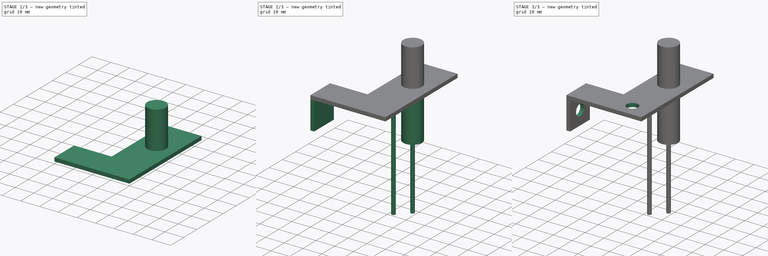
[diagram: build sequence overview — one tinted view per stage of 3, left to right]
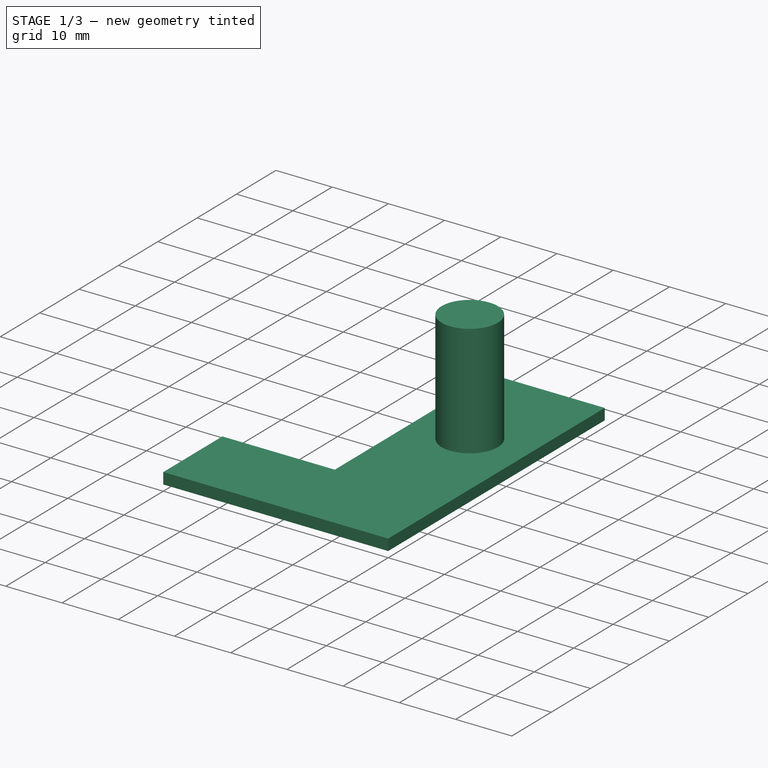
[diagram: stage 1 of 3 — iso view after this stage's code; geometry added in this stage tinted green]
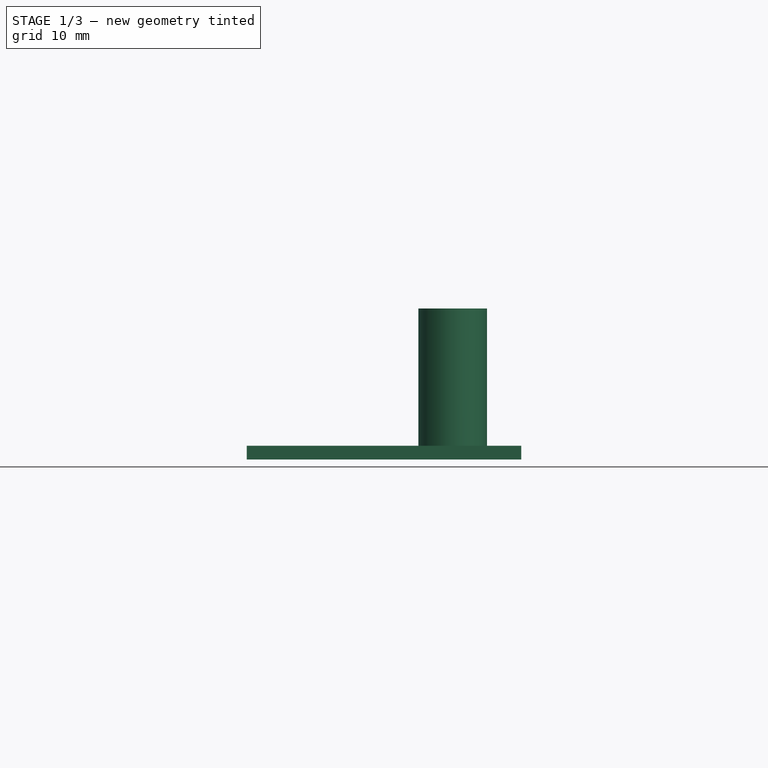
[diagram: stage 1 of 3 — front view after this stage's code; geometry added in this stage tinted green]
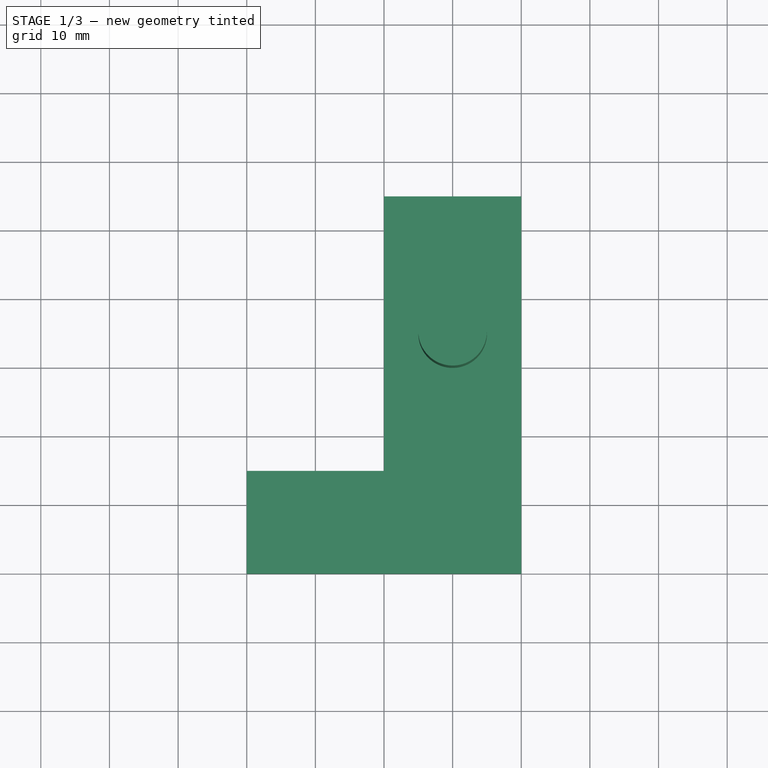
[diagram: stage 1 of 3 — top view after this stage's code; geometry added in this stage tinted green]
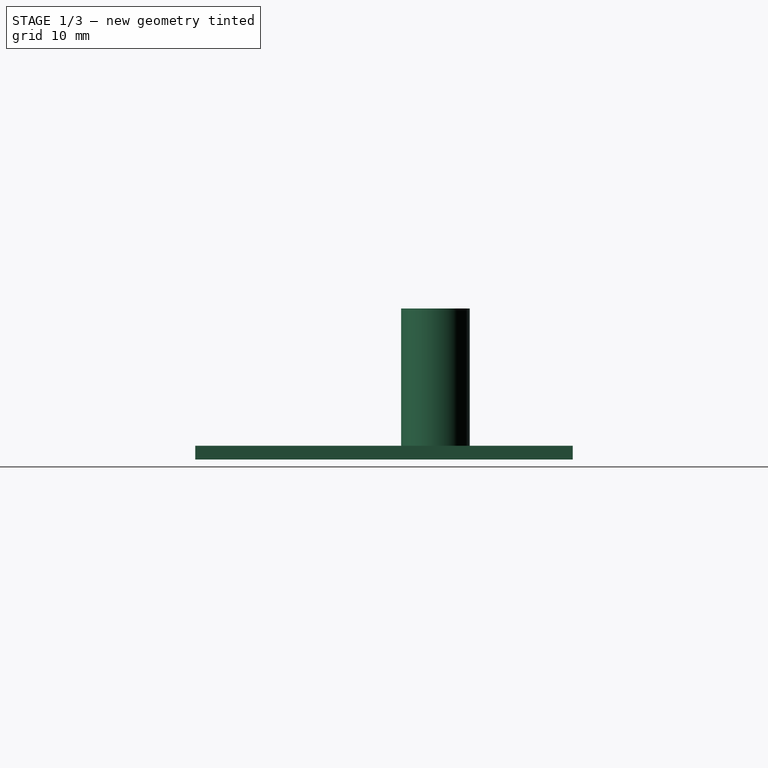
[diagram: stage 1 of 3 — right view after this stage's code; geometry added in this stage tinted green]
FCSTD DOCUMENT  (FreeCAD 0.17R12435 (Git))
Label: igniter
License: All rights reserved
LicenseURL: http://en.wikipedia.org/wiki/All_rights_reserved
objects: Sketcher::SketchObject×7, PartDesign::Pad×5, PartDesign::Pocket×2, PartDesign::Body×1
note: 22 computed .brp shape members not serialized (recipe doc carries the construction recipe); baked Part::Feature solids carry a one-line shape summary decoded from their .brp

FEATURE [Sketcher::SketchObject] Sketch
  MapMode = 5
  Support = -> [XY_Plane]
  sketch-geometry (6):
    g0: LineSegment StartX=0 StartY=0 StartZ=0 EndX=40 EndY=0 EndZ=0
    g1: LineSegment StartX=40 StartY=0 StartZ=0 EndX=40 EndY=55 EndZ=0
    g2: LineSegment StartX=40 StartY=55 StartZ=0 EndX=20 EndY=55 EndZ=0
    g3: LineSegment StartX=20 StartY=55 StartZ=0 EndX=20 EndY=15 EndZ=0
    g4: LineSegment StartX=20 StartY=15 StartZ=0 EndX=0 EndY=15 EndZ=0
    g5: LineSegment StartX=0 StartY=15 StartZ=0 EndX=0 EndY=0 EndZ=0
  constraints (17):
    c: Coincident(g-1,g0)
    c: Horizontal(g0)
    c: Coincident(g0,g1)
    c: Vertical(g1)
    c: Coincident(g1,g2)
    c: Horizontal(g2)
    c: Coincident(g2,g3)
    c: Vertical(g3)
    c: Coincident(g3,g4)
    c: Horizontal(g4)
    c: Coincident(g4,g5)
    c: Coincident(g5,g0)
    c: Vertical(g5)
    c: DistanceX(g0,g0) = 40
    c: DistanceY(g1,g1) = 55
    c: DistanceX(g2,g2) = 20
    c: DistanceY(g3,g3) = 40
FEATURE [PartDesign::Pad] Pad
  Length = 2
  Length2 = 100
  Profile = -> Sketch
  Type = 0
FEATURE [Sketcher::SketchObject] Sketch001
  MapMode = 5
  Placement = pos=(0,0,2) rot=(0,0,1;0rad)
  Support = -> [Pad]
  sketch-geometry (5):
    g0: LineSegment [constr] StartX=0 StartY=0 StartZ=0 EndX=30 EndY=0 EndZ=0
    g1: LineSegment [constr] StartX=30 StartY=0 StartZ=0 EndX=30 EndY=35 EndZ=0
    g2: LineSegment [constr] StartX=30 StartY=35 StartZ=0 EndX=0 EndY=35 EndZ=0
    g3: LineSegment [constr] StartX=0 StartY=35 StartZ=0 EndX=0 EndY=0 EndZ=0
    g4: Circle CenterX=30 CenterY=35 CenterZ=0 NormalX=0 NormalY=0 NormalZ=1 AngleXU=0 Radius=5
  constraints (13):
    c: Coincident(g0,g1)
    c: Coincident(g1,g2)
    c: Coincident(g2,g3)
    c: Coincident(g3,g0)
    c: Horizontal(g0)
    c: Horizontal(g2)
    c: Vertical(g1)
    c: Vertical(g3)
    c: Coincident(g0,g-1)
    c: DistanceY(g3,g3) = 35
    c: DistanceX(g2,g2) = 30
    c: Coincident(g4,g1)
    c: Radius(g4) = 5
FEATURE [PartDesign::Pad] Pad001
  BaseFeature = -> Pad
  Length = 20
  Length2 = 100
  Profile = -> Sketch001
  Type = 0
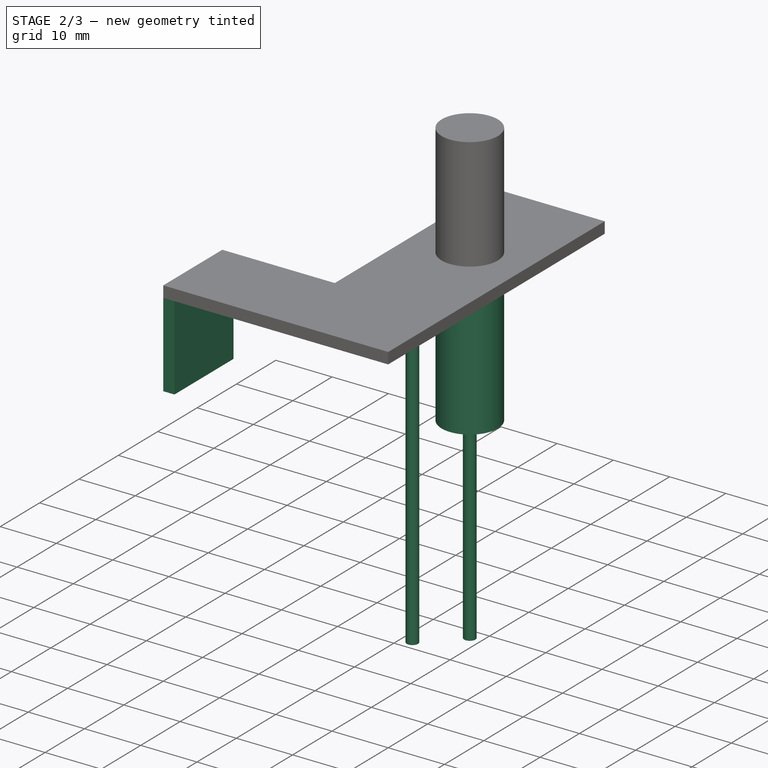
[diagram: stage 2 of 3 — iso view after this stage's code; geometry added in this stage tinted green]
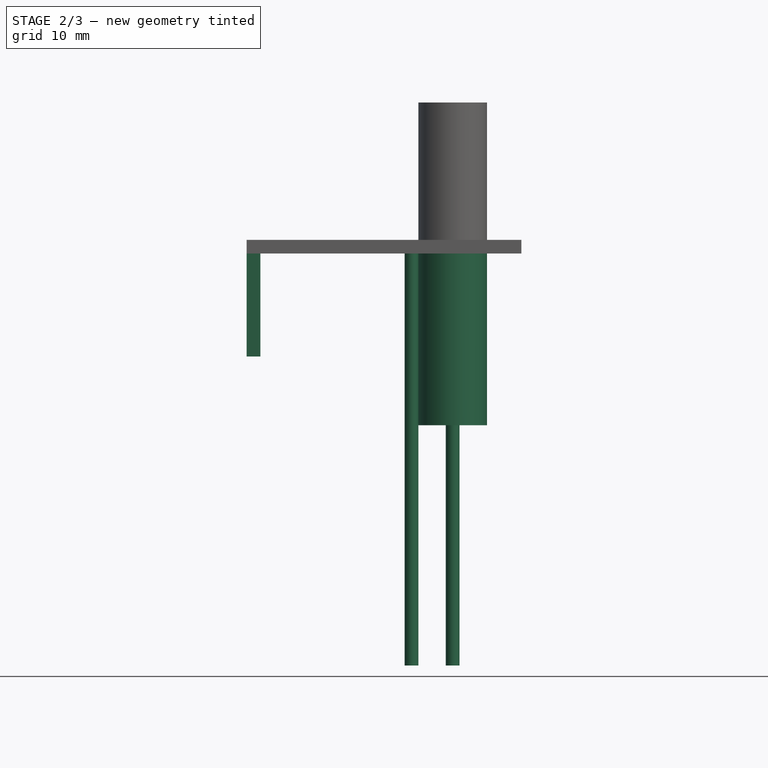
[diagram: stage 2 of 3 — front view after this stage's code; geometry added in this stage tinted green]
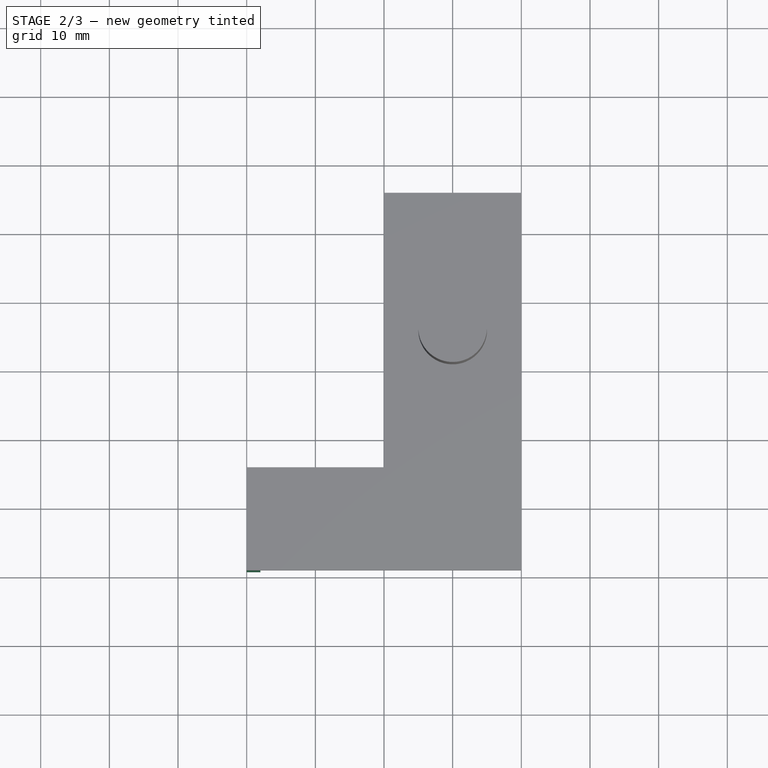
[diagram: stage 2 of 3 — top view after this stage's code; geometry added in this stage tinted green]
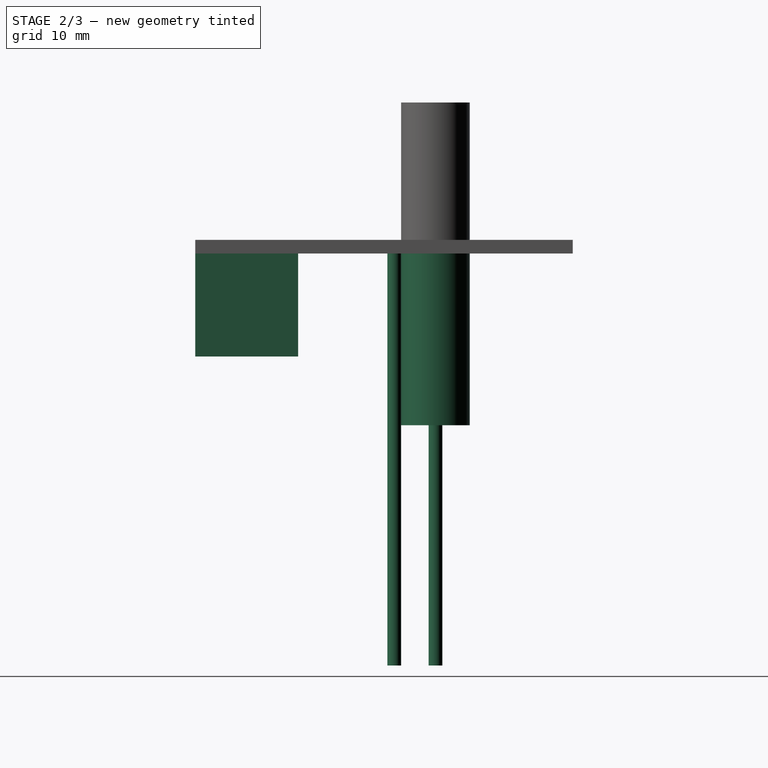
[diagram: stage 2 of 3 — right view after this stage's code; geometry added in this stage tinted green]
FEATURE [Sketcher::SketchObject] Sketch002
  MapMode = 5
  Placement = pos=(0,0,0) rot=(1,0,0;3.14159rad)
  Support = -> [Pad001]
  sketch-geometry (4):
    g0: LineSegment StartX=0 StartY=0 StartZ=0 EndX=2 EndY=0 EndZ=0
    g1: LineSegment StartX=2 StartY=0 StartZ=0 EndX=2 EndY=-15 EndZ=0
    g2: LineSegment StartX=2 StartY=-15 StartZ=0 EndX=0 EndY=-15 EndZ=0
    g3: LineSegment StartX=0 StartY=-15 StartZ=0 EndX=0 EndY=0 EndZ=0
  constraints (11):
    c: Coincident(g0,g1)
    c: Coincident(g1,g2)
    c: Coincident(g2,g3)
    c: Coincident(g3,g0)
    c: Horizontal(g0)
    c: Horizontal(g2)
    c: Vertical(g1)
    c: Vertical(g3)
    c: Coincident(g0,g-1)
    c: DistanceY(g3,g3) = 15
    c: DistanceX(g0,g0) = 2
FEATURE [PartDesign::Pad] Pad002
  BaseFeature = -> Pad001
  Length = 15
  Length2 = 100
  Profile = -> Sketch002
  Type = 0
FEATURE [Sketcher::SketchObject] Sketch003
  MapMode = 5
  Placement = pos=(0,0,0) rot=(1,0,0;3.14159rad)
  Support = -> [Pad002]
  sketch-geometry (10):
    g0: LineSegment [constr] StartX=0 StartY=0 StartZ=0 EndX=30 EndY=0 EndZ=0
    g1: LineSegment [constr] StartX=30 StartY=0 StartZ=0 EndX=30 EndY=-35 EndZ=0
    g2: LineSegment [constr] StartX=30 StartY=-35 StartZ=0 EndX=0 EndY=-35 EndZ=0
    g3: LineSegment [constr] StartX=0 StartY=-35 StartZ=0 EndX=0 EndY=0 EndZ=0
    g4: LineSegment [constr] StartX=30 StartY=-35 StartZ=0 EndX=24 EndY=-35 EndZ=0
    g5: LineSegment [constr] StartX=24 StartY=-35 StartZ=0 EndX=24 EndY=-29 EndZ=0
    g6: LineSegment [constr] StartX=24 StartY=-29 StartZ=0 EndX=30 EndY=-29 EndZ=0
    g7: LineSegment [constr] StartX=30 StartY=-29 StartZ=0 EndX=30 EndY=-35 EndZ=0
    g8: Circle CenterX=30 CenterY=-35 CenterZ=0 NormalX=0 NormalY=0 NormalZ=1 AngleXU=0 Radius=5
    g9: Circle CenterX=24 CenterY=-29 CenterZ=0 NormalX=0 NormalY=0 NormalZ=1 AngleXU=0 Radius=1
  constraints (26):
    c: Coincident(g0,g1)
    c: Coincident(g1,g2)
    c: Coincident(g2,g3)
    c: Coincident(g3,g0)
    c: Horizontal(g0)
    c: Horizontal(g2)
    c: Vertical(g1)
    c: Vertical(g3)
    c: Coincident(g0,g-1)
    c: DistanceY(g3,g3) = 35
    c: DistanceX(g0,g0) = 30
    c: Coincident(g4,g5)
    c: Coincident(g5,g6)
    c: Coincident(g6,g7)
    c: Coincident(g7,g4)
    c: Horizontal(g4)
    c: Horizontal(g6)
    c: Vertical(g5)
    c: Vertical(g7)
    c: Coincident(g4,g1)
    c: Equal(g5,g6)
    c: DistanceX(g6,g6) = 6
    c: Coincident(g8,g1)
    c: Coincident(g9,g5)
    c: Radius(g8) = 5
    c: Radius(g9) = 1
FEATURE [PartDesign::Pad] Pad003
  BaseFeature = -> Pad002
  Length = 25
  Length2 = 100
  Profile = -> Sketch003
  Type = 0
FEATURE [Sketcher::SketchObject] Sketch004
  MapMode = 5
  Placement = pos=(0,0,-25) rot=(1,0,0;3.14159rad)
  Support = -> [Pad003]
  sketch-geometry (10):
    g0: LineSegment [constr] StartX=0 StartY=0 StartZ=0 EndX=30 EndY=0 EndZ=0
    g1: LineSegment [constr] StartX=30 StartY=0 StartZ=0 EndX=30 EndY=-35 EndZ=0
    g2: LineSegment [constr] StartX=30 StartY=-35 StartZ=0 EndX=0 EndY=-35 EndZ=0
    g3: LineSegment [constr] StartX=0 StartY=-35 StartZ=0 EndX=0 EndY=0 EndZ=0
    g4: LineSegment [constr] StartX=30 StartY=-35 StartZ=0 EndX=24 EndY=-35 EndZ=0
    g5: LineSegment [constr] StartX=24 StartY=-35 StartZ=0 EndX=24 EndY=-29 EndZ=0
    g6: LineSegment [constr] StartX=24 StartY=-29 StartZ=0 EndX=30 EndY=-29 EndZ=0
    g7: LineSegment [constr] StartX=30 StartY=-29 StartZ=0 EndX=30 EndY=-35 EndZ=0
    g8: Circle CenterX=24 CenterY=-29 CenterZ=0 NormalX=0 NormalY=0 NormalZ=1 AngleXU=0 Radius=1
    g9: Circle CenterX=30 CenterY=-35 CenterZ=0 NormalX=0 NormalY=0 NormalZ=1 AngleXU=0 Radius=1
  constraints (26):
    c: Coincident(g0,g1)
    c: Coincident(g1,g2)
    c: Coincident(g2,g3)
    c: Coincident(g3,g0)
    c: Horizontal(g0)
    c: Horizontal(g2)
    c: Vertical(g1)
    c: Vertical(g3)
    c: Coincident(g0,g-1)
    c: DistanceY(g3,g3) = 35
    c: DistanceX(g0,g0) = 30
    c: Coincident(g4,g5)
    c: Coincident(g5,g6)
    c: Coincident(g6,g7)
    c: Coincident(g7,g4)
    c: Horizontal(g4)
    c: Horizontal(g6)
    c: Vertical(g5)
    c: Vertical(g7)
    c: Coincident(g4,g1)
    c: Equal(g5,g6)
    c: DistanceX(g6,g6) = 6
    c: Coincident(g8,g5)
    c: Coincident(g9,g1)
    c: Equal(g9,g8)
    c: Radius(g8) = 1
FEATURE [PartDesign::Pad] Pad004
  BaseFeature = -> Pad003
  Length = 35
  Length2 = 100
  Profile = -> Sketch004
  Type = 0
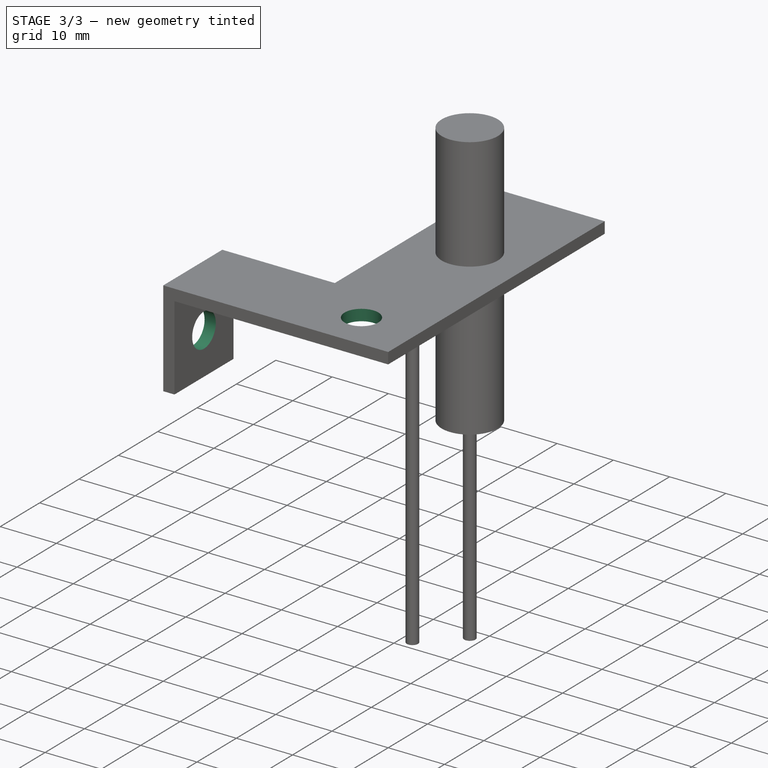
[diagram: stage 3 of 3 — iso view after this stage's code; geometry added in this stage tinted green]
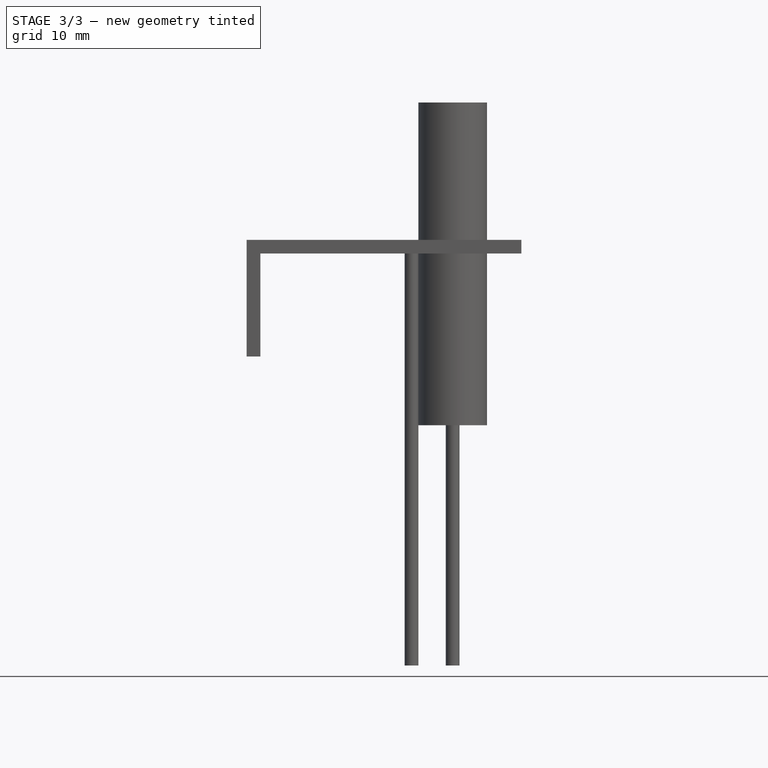
[diagram: stage 3 of 3 — front view after this stage's code; geometry added in this stage tinted green]
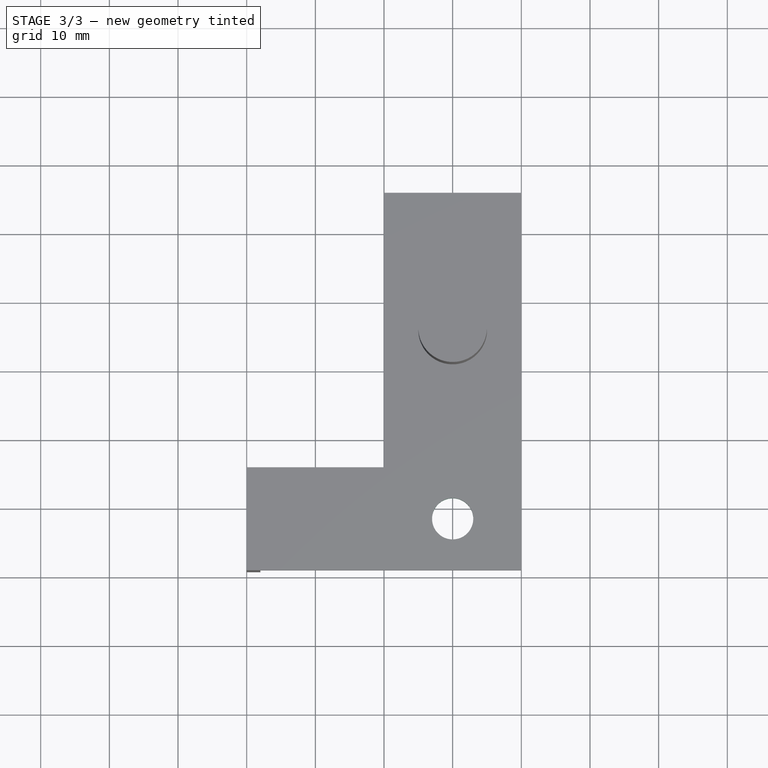
[diagram: stage 3 of 3 — top view after this stage's code; geometry added in this stage tinted green]
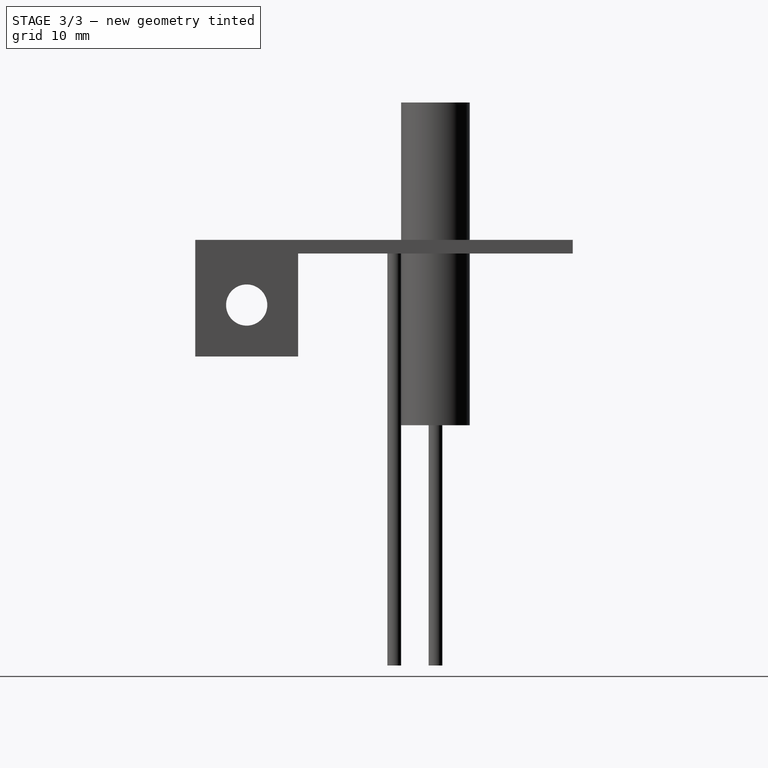
[diagram: stage 3 of 3 — right view after this stage's code; geometry added in this stage tinted green]
FEATURE [Sketcher::SketchObject] Sketch005
  MapMode = 5
  Placement = pos=(0,0,2) rot=(0,0,1;0rad)
  Support = -> [Pad004]
  sketch-geometry (5):
    g0: LineSegment [constr] StartX=0 StartY=0 StartZ=0 EndX=30 EndY=0 EndZ=0
    g1: LineSegment [constr] StartX=30 StartY=0 StartZ=0 EndX=30 EndY=7.5 EndZ=0
    g2: LineSegment [constr] StartX=30 StartY=7.5 StartZ=0 EndX=0 EndY=7.5 EndZ=0
    g3: LineSegment [constr] StartX=0 StartY=7.5 StartZ=0 EndX=0 EndY=0 EndZ=0
    g4: Circle CenterX=30 CenterY=7.5 CenterZ=0 NormalX=0 NormalY=0 NormalZ=1 AngleXU=0 Radius=3
  constraints (13):
    c: Coincident(g0,g1)
    c: Coincident(g1,g2)
    c: Coincident(g2,g3)
    c: Coincident(g3,g0)
    c: Horizontal(g0)
    c: Horizontal(g2)
    c: Vertical(g1)
    c: Vertical(g3)
    c: Coincident(g0,g-1)
    c: DistanceY(g3,g3) = 7.5
    c: DistanceX(g2,g2) = 30
    c: Coincident(g4,g1)
    c: Radius(g4) = 3
FEATURE [PartDesign::Pocket] Pocket
  BaseFeature = -> Pad004
  Length = 5
  Profile = -> Sketch005
  Type = 2
FEATURE [Sketcher::SketchObject] Sketch006
  MapMode = 5
  Placement = pos=(2,0,0) rot=(0.57735,0.57735,0.57735;2.0944rad)
  Support = -> [Pocket]
  sketch-geometry (5):
    g0: LineSegment [constr] StartX=0 StartY=0 StartZ=0 EndX=7.5 EndY=0 EndZ=0
    g1: LineSegment [constr] StartX=7.5 StartY=0 StartZ=0 EndX=7.5 EndY=-7.5 EndZ=0
    g2: LineSegment [constr] StartX=7.5 StartY=-7.5 StartZ=0 EndX=0 EndY=-7.5 EndZ=0
    g3: LineSegment [constr] StartX=0 StartY=-7.5 StartZ=0 EndX=0 EndY=0 EndZ=0
    g4: Circle CenterX=7.5 CenterY=-7.5 CenterZ=0 NormalX=0 NormalY=0 NormalZ=1 AngleXU=0 Radius=3
  constraints (13):
    c: Coincident(g0,g1)
    c: Coincident(g1,g2)
    c: Coincident(g2,g3)
    c: Coincident(g3,g0)
    c: Horizontal(g0)
    c: Horizontal(g2)
    c: Vertical(g1)
    c: Vertical(g3)
    c: Coincident(g0,g-1)
    c: Equal(g2,g1)
    c: DistanceY(g3,g3) = 7.5
    c: Coincident(g4,g1)
    c: Radius(g4) = 3
FEATURE [PartDesign::Pocket] Pocket001
  BaseFeature = -> Pocket
  Length = 5
  Profile = -> Sketch006
  Type = 2
FEATURE [PartDesign::Body] Body
  Group = -> [Sketch,Pad,Sketch001,Pad001,Sketch002,Pad002,Sketch003,Pad003,Sketch004,Pad004,Sketch005,Pocket,Sketch006,Pocket001]
  Origin = -> Origin
  Tip = -> Pocket001
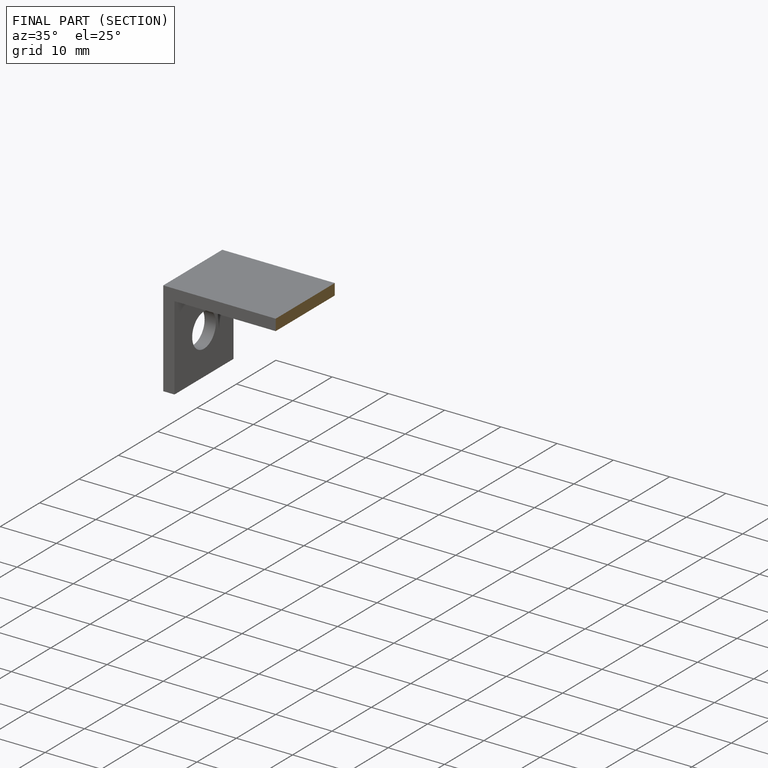
[diagram: finished part — half-section view (interior)]
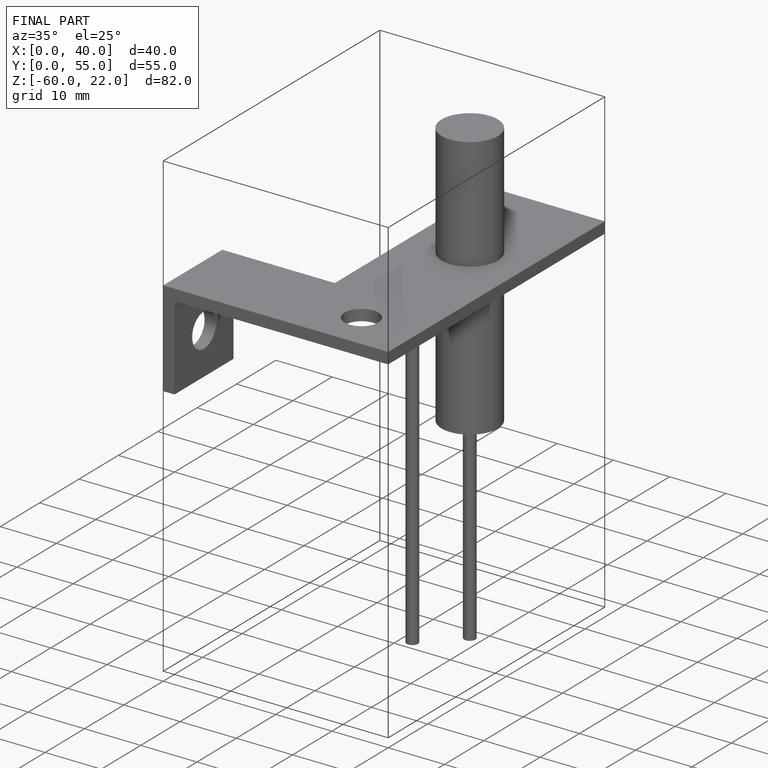
[diagram: finished part — iso view with bounding-box wireframe]
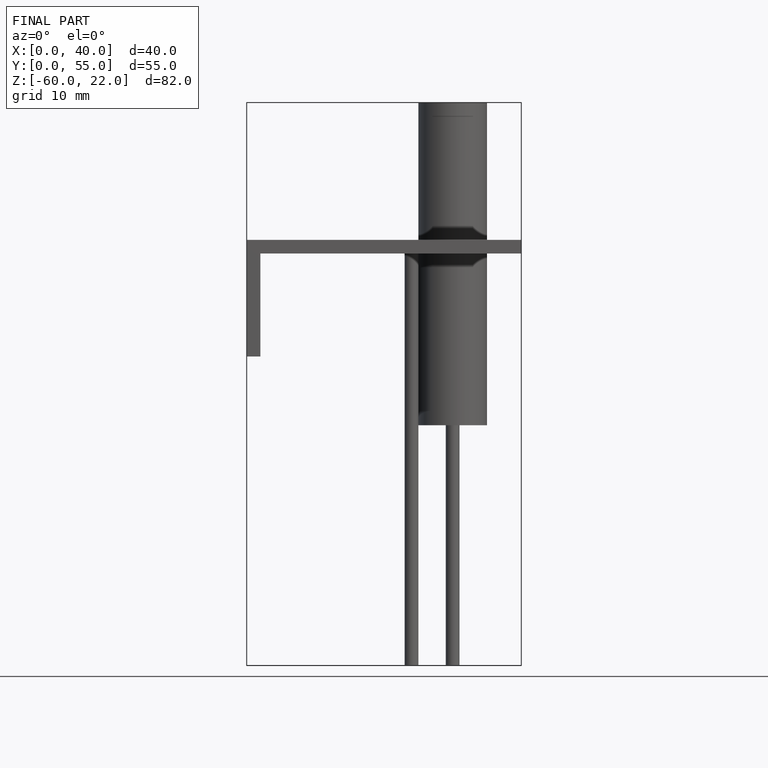
[diagram: finished part — front view with bounding-box wireframe]
